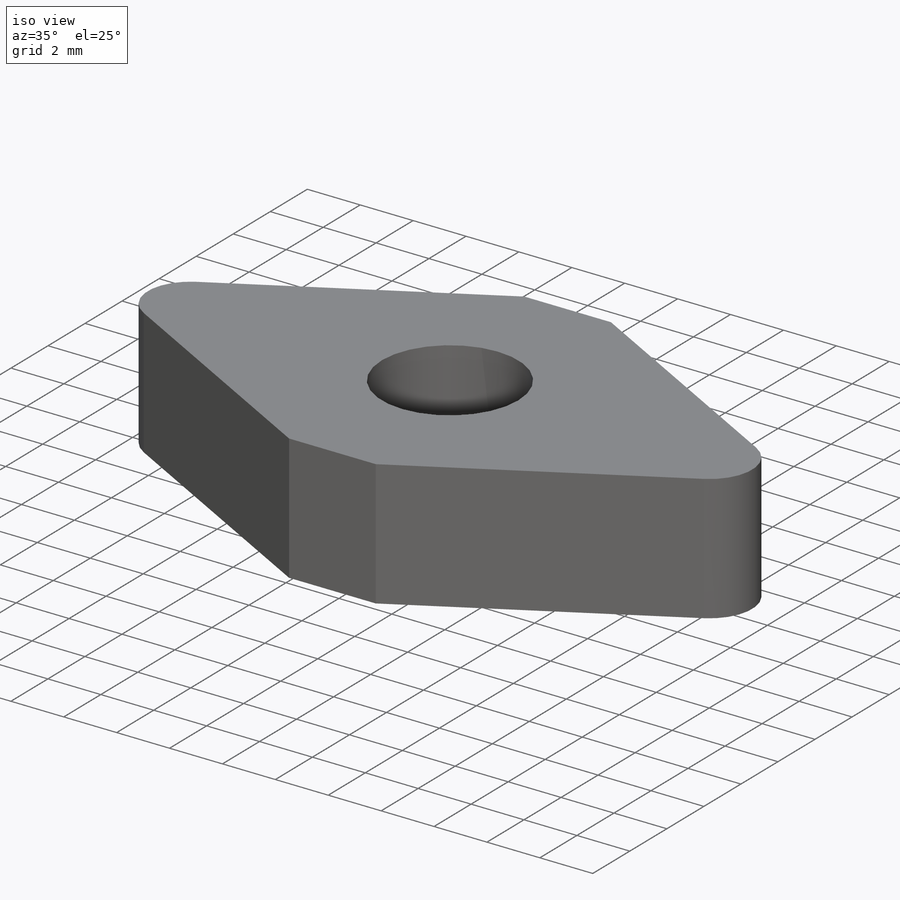
[diagram: iso view]
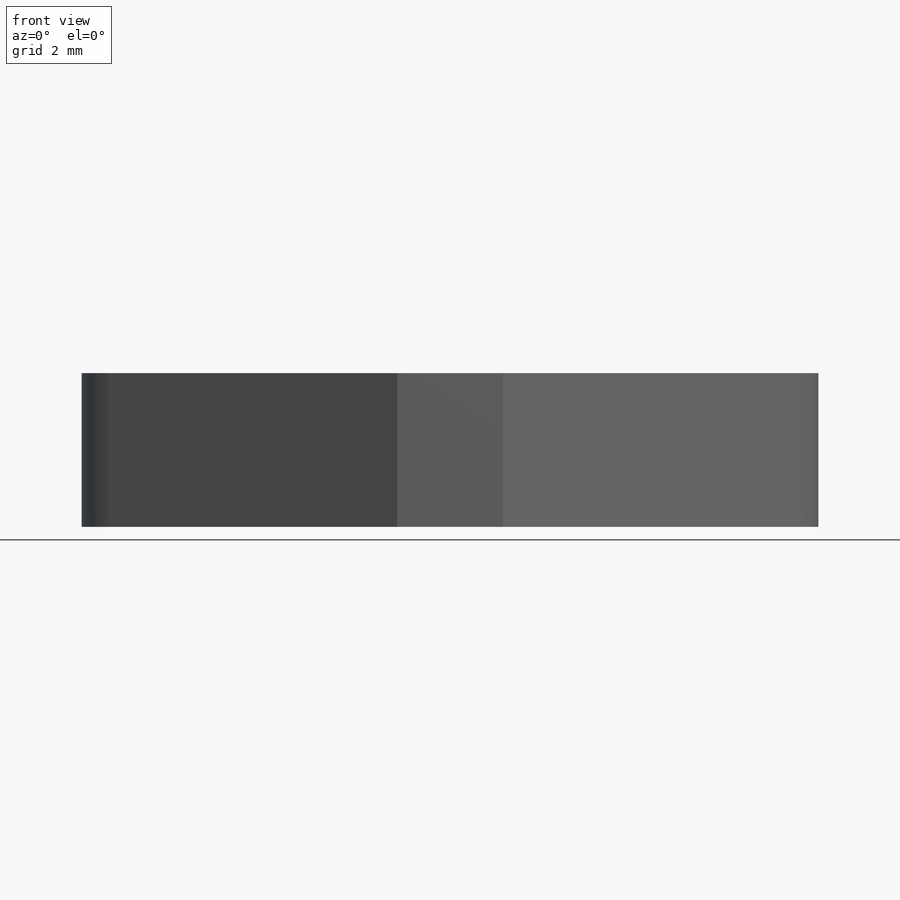
[diagram: front view]
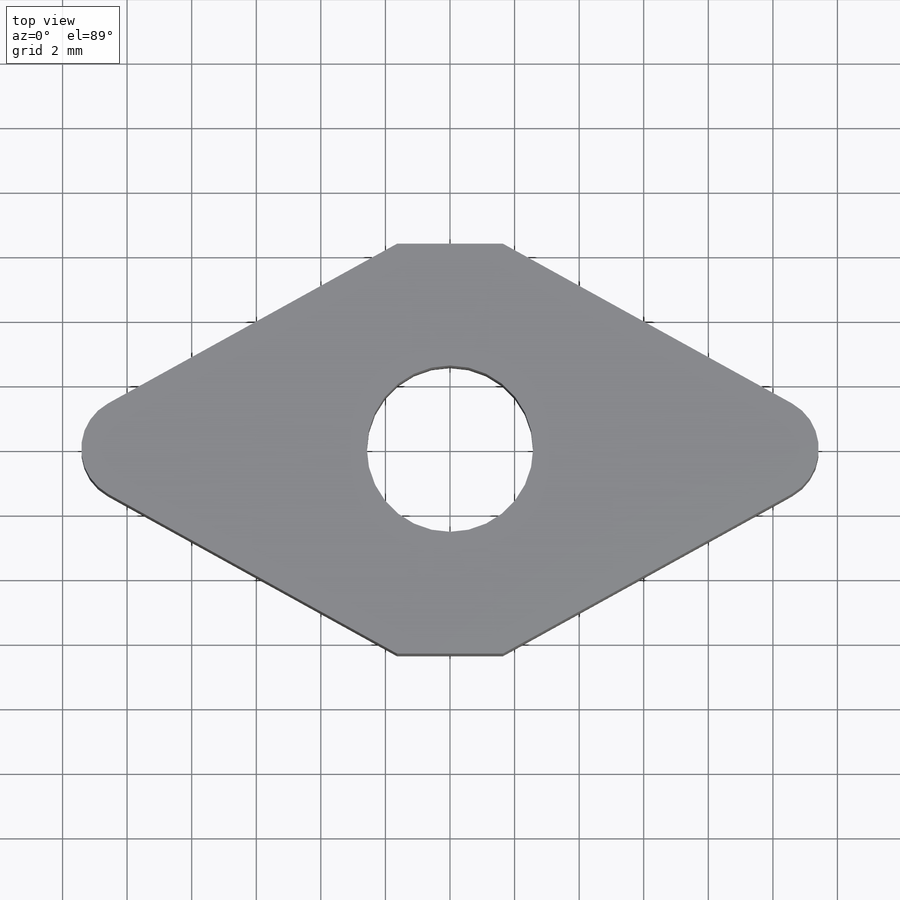
[diagram: top view]
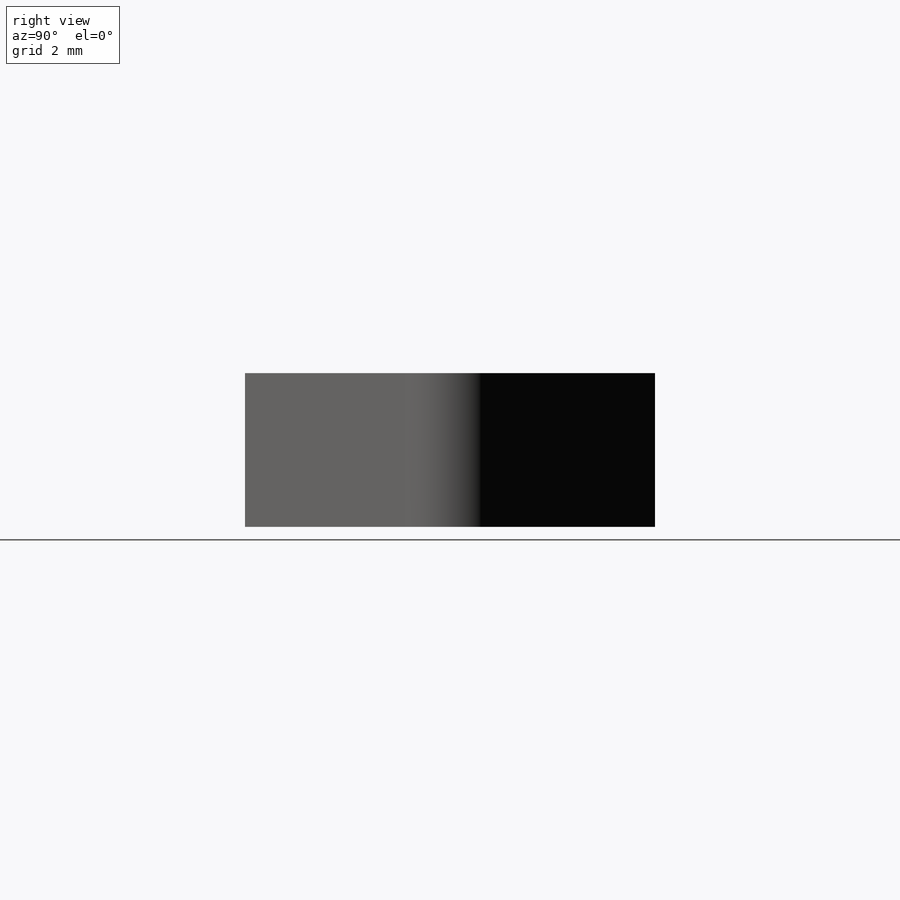
[diagram: right view]
SOLIDWORKS PART (.sldprt)
format: sldprt  version: not decoded by parser v0  size: 153,088 bytes
history: native  units: mm
features: sketch x5, plane x3, material x1, extrude x1, cut_extrude x1 (+9 scaffold rows collapsed)
feature tree (20):
  scaffold x9  (default folders/planes/origin — collapsed)
  material  "Material <nicht festgelegt>"
  plane  "Ebene vorne"
  plane  "Ebene oben"
  plane  "Ebene rechts"
  sketch  "Skizze1"  dims[c1.D1=~41.922356mm c1.D3=1.6mm c2.D1=15.0mm c2.D2=15.0mm c2.D3=~2.517093mm c2.D4=~10.233392mm c2.D5=~10.233392mm c2.D6=~10.233392mm c2.D7=~10.233392mm]
  extrude  "Aufsatz-Linear austragen1"  Depth=4.76mm
  sketch  "Skizze2"  dims[D1=~2.369934mm]
  cut_extrude  "Schnitt-Linear austragen2"  Depth=4.76mm
  sketch  "Skizze3"  dims[D1=4.76mm]
  sketch  "Skizze4"  dims[c1.D1=~1.844216mm c2.D1=~28.925474deg]
  sketch  "3D-Skizze2"  dims[c1.D1=~40.099289mm c2.D1=~6.403232mm c2.D4=90.0deg c2.D2=~2.077757mm c3.D2=~2.250742mm c4.D2=~0.902015mm c5.D2=0.0484mm c5.D3=0.005mm]
decode coverage: 7 of 7 modeling features carry decoded parameters
note: ~ marks probable driven/reference dimensions
note: suppression state not decoded; provenance and decode notes live in map.json
